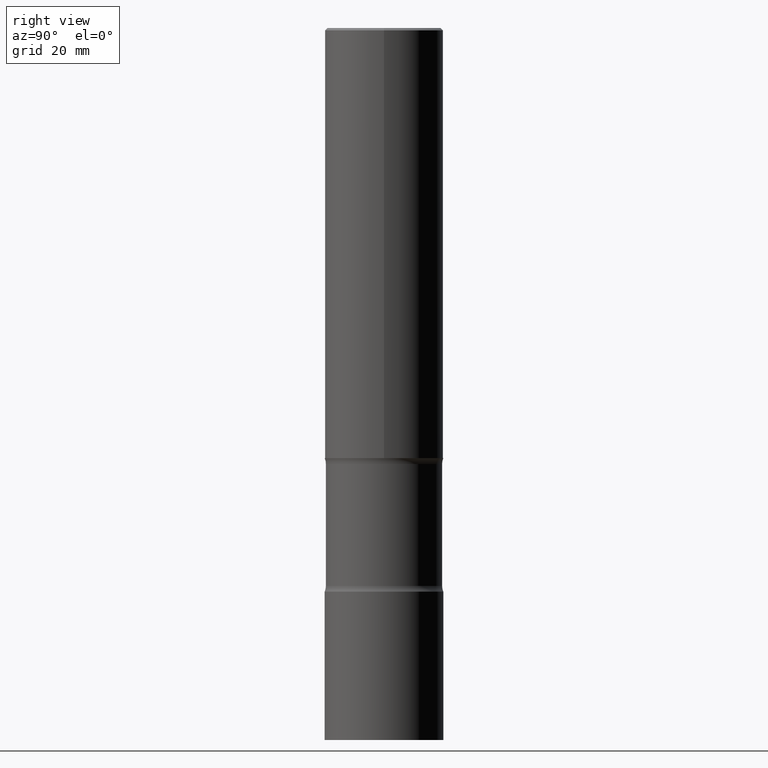
[diagram: clean part render]
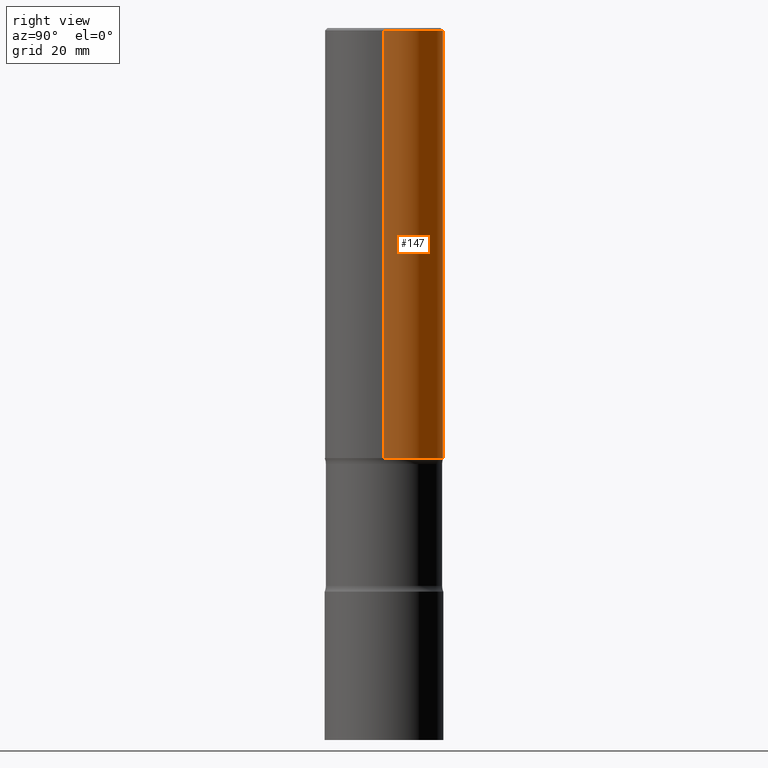
[diagram: same view with one face highlighted and labeled with its STEP entity id]
A machine part, right view. The second image highlights one B-rep face of the part: STEP entity #147.
In plain terms, the highlighted cylindrical surface (partial cylindrical patch) has radius 12.7 mm, axis along (-0, 0, 1).
Its self-contained STEP definition (entity closure, byte-faithful):
#61 = DIRECTION ( 'NONE',  ( -2.445468806185136597E-29, 3.491481338843145583E-15, 1.000000000000000000 ) ) ;
#81 = ORIENTED_EDGE ( 'NONE', *, *, #241, .F. ) ;
#96 = CARTESIAN_POINT ( 'NONE',  ( 0.5000000000000000000, -1.614810119214954068E-14, -3.625000000000000888 ) ) ;
#123 = EDGE_LOOP ( 'NONE', ( #194, #204, #269, #81 ) ) ;
#130 = CARTESIAN_POINT ( 'NONE',  ( 0.4999999999999997780, -3.491481338843131778E-15, 2.438088387897966775E-29 ) ) ;
#141 = LINE ( 'NONE', #296, #471 ) ;
#146 = DIRECTION ( 'NONE',  ( 1.000000000000000000, -6.982962677686266711E-15, 0.000000000000000000 ) ) ;
#147 = ADVANCED_FACE ( 'NONE', ( #416 ), #380, .T. ) ;
#164 = VERTEX_POINT ( 'NONE', #181 ) ;
#170 = EDGE_CURVE ( 'NONE', #478, #164, #506, .T. ) ;
#181 = CARTESIAN_POINT ( 'NONE',  ( -0.5000000000000000000, -2.810511061241131620E-15, -3.625000000000000888 ) ) ;
#184 = DIRECTION ( 'NONE',  ( -2.445468806185136597E-29, 3.491481338843145583E-15, 1.000000000000000000 ) ) ;
#185 = CARTESIAN_POINT ( 'NONE',  ( 4.890937612370289799E-31, -6.982962677686315028E-17, -0.02000000000000006981 ) ) ;
#194 = ORIENTED_EDGE ( 'NONE', *, *, #170, .T. ) ;
#196 = AXIS2_PLACEMENT_3D ( 'NONE', #185, #206, #292 ) ;
#197 = VERTEX_POINT ( 'NONE', #372 ) ;
#204 = ORIENTED_EDGE ( 'NONE', *, *, #414, .T. ) ;
#206 = DIRECTION ( 'NONE',  ( -2.445468806185136597E-29, 3.491481338843145583E-15, 1.000000000000000000 ) ) ;
#209 = CARTESIAN_POINT ( 'NONE',  ( 0.000000000000000000, 0.000000000000000000, 0.000000000000000000 ) ) ;
#210 = CARTESIAN_POINT ( 'NONE',  ( -0.4999999999999996114, 3.421651712066267296E-15, -0.02000000000000006981 ) ) ;
#236 = CIRCLE ( 'NONE', #196, 0.4999999999999996114 ) ;
#241 = EDGE_CURVE ( 'NONE', #478, #197, #268, .T. ) ;
#255 = DIRECTION ( 'NONE',  ( -2.445468806185136877E-29, 3.491481338843145188E-15, 1.000000000000000000 ) ) ;
#268 = LINE ( 'NONE', #130, #480 ) ;
#269 = ORIENTED_EDGE ( 'NONE', *, *, #318, .F. ) ;
#270 = AXIS2_PLACEMENT_3D ( 'NONE', #338, #184, #146 ) ;
#289 = AXIS2_PLACEMENT_3D ( 'NONE', #209, #61, #486 ) ;
#292 = DIRECTION ( 'NONE',  ( 1.000000000000000000, -6.982962677686266711E-15, 0.000000000000000000 ) ) ;
#296 = CARTESIAN_POINT ( 'NONE',  ( -0.4999999999999997780, 3.552713678800499352E-15, -2.459467545127452050E-29 ) ) ;
#318 = EDGE_CURVE ( 'NONE', #197, #329, #236, .T. ) ;
#329 = VERTEX_POINT ( 'NONE', #210 ) ;
#338 = CARTESIAN_POINT ( 'NONE',  ( 8.864824422421122405E-29, -1.265661985330640574E-14, -3.625000000000000888 ) ) ;
#372 = CARTESIAN_POINT ( 'NONE',  ( 0.4999999999999996114, -3.500078625662626318E-15, -0.02000000000000006981 ) ) ;
#380 = CYLINDRICAL_SURFACE ( 'NONE', #289, 0.4999999999999997780 ) ;
#414 = EDGE_CURVE ( 'NONE', #164, #329, #141, .T. ) ;
#416 = FACE_OUTER_BOUND ( 'NONE', #123, .T. ) ;
#429 = DIRECTION ( 'NONE',  ( -2.445468806185136877E-29, 3.491481338843145188E-15, 1.000000000000000000 ) ) ;
#471 = VECTOR ( 'NONE', #255, 39.37007874015748143 ) ;
#478 = VERTEX_POINT ( 'NONE', #96 ) ;
#480 = VECTOR ( 'NONE', #429, 39.37007874015748143 ) ;
#486 = DIRECTION ( 'NONE',  ( 1.000000000000000000, -6.982962677686266711E-15, 4.876176775795935793E-29 ) ) ;
#506 = CIRCLE ( 'NONE', #270, 0.5000000000000000000 ) ;